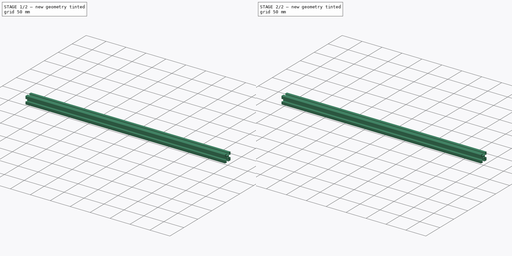
[diagram: build sequence overview — one tinted view per stage of 2, left to right]
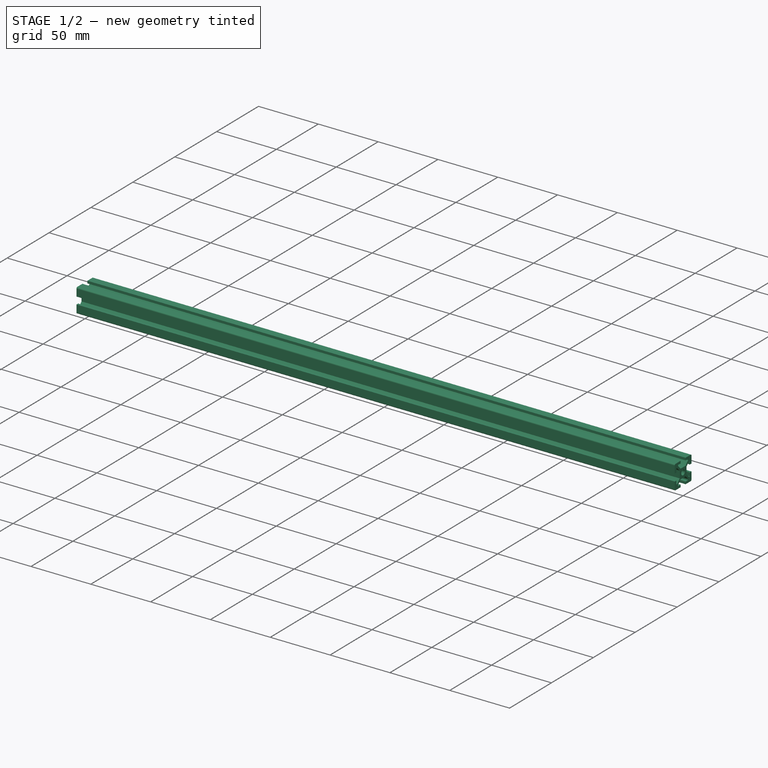
[diagram: stage 1 of 2 — iso view after this stage's code; geometry added in this stage tinted green]
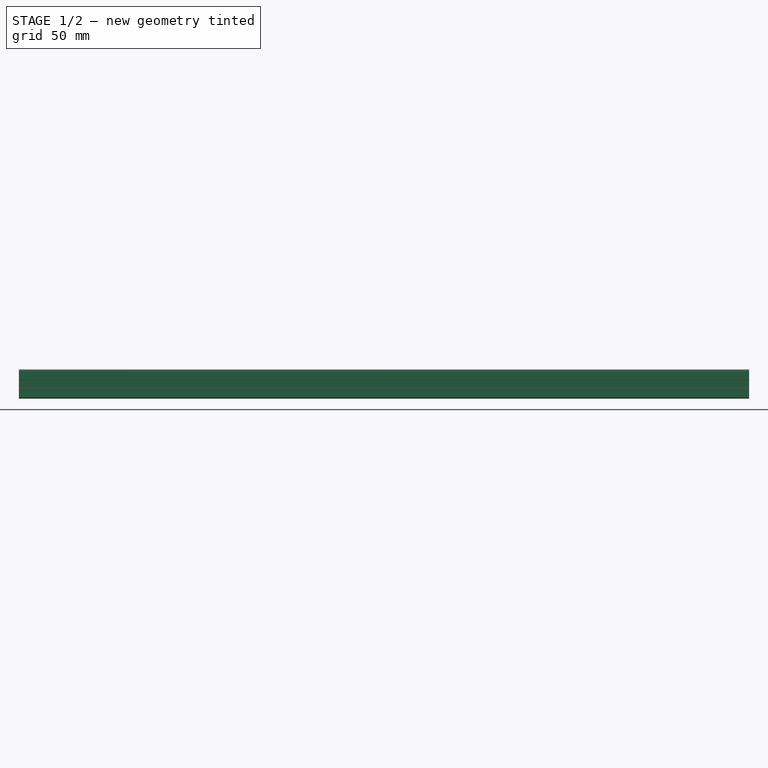
[diagram: stage 1 of 2 — front view after this stage's code; geometry added in this stage tinted green]
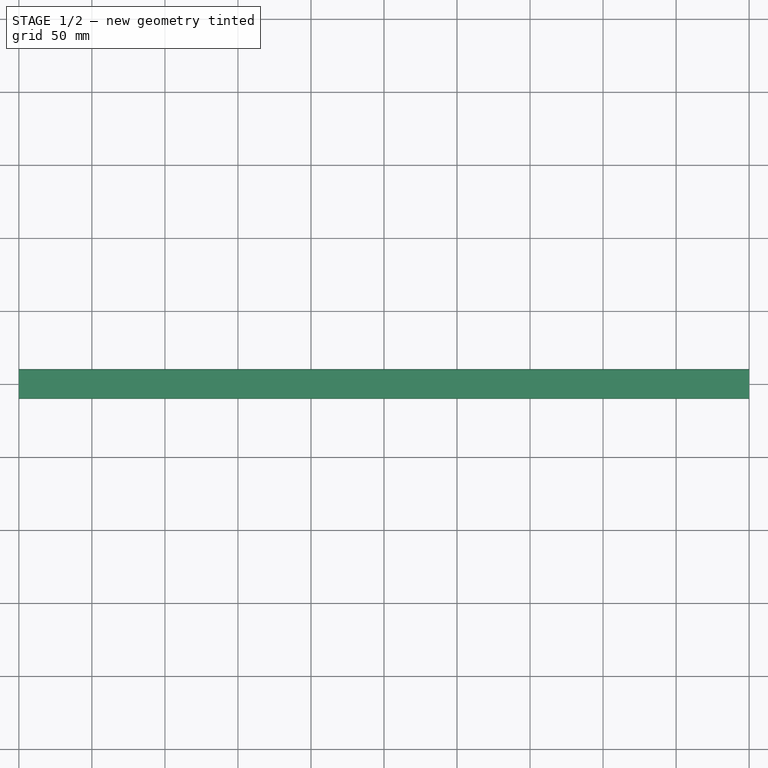
[diagram: stage 1 of 2 — top view after this stage's code; geometry added in this stage tinted green]
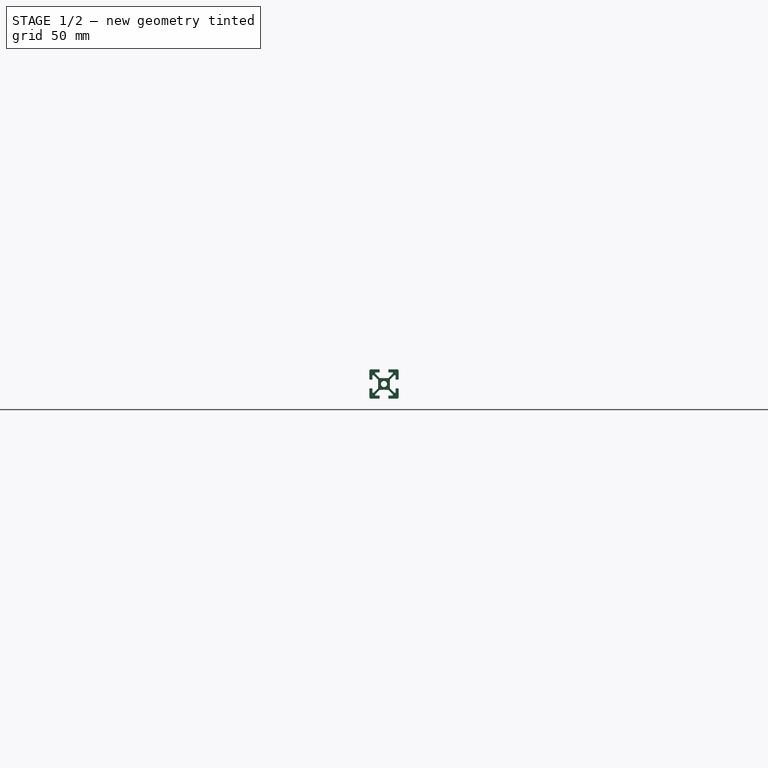
[diagram: stage 1 of 2 — right view after this stage's code; geometry added in this stage tinted green]
FCSTD DOCUMENT
Label: HFS5-2020-500
objects: Sketcher::SketchObject×2, PartDesign::Pad×1, PartDesign::Pocket×1, PartDesign::PolarPattern×1, PartDesign::Fillet×1
note: 8 computed .brp shape members not serialized (recipe doc carries the construction recipe); baked Part::Feature solids carry a one-line shape summary decoded from their .brp

FEATURE [Sketcher::SketchObject] Sketch
  Placement = pos=(0,0,0) rot=(0.57735,0.57735,0.57735;2.0944rad)
  sketch-geometry (51):
    g0: LineSegment StartX=-9 StartY=-10 StartZ=0 EndX=-3 EndY=-10 EndZ=0
    g1: LineSegment StartX=10 StartY=-9 StartZ=0 EndX=10 EndY=-3 EndZ=0
    g2: LineSegment StartX=-2.93934 StartY=-4 StartZ=0 EndX=2.93934 EndY=-4 EndZ=0
    g3: LineSegment StartX=4 StartY=-2.93934 StartZ=0 EndX=4 EndY=2.93934 EndZ=0
    g4: LineSegment StartX=2.93934 StartY=4 StartZ=0 EndX=-2.93934 EndY=4 EndZ=0
    g5: LineSegment StartX=-4 StartY=2.93934 StartZ=0 EndX=-4 EndY=-2.93934 EndZ=0
    g6: LineSegment StartX=-10 StartY=3 StartZ=0 EndX=-8 EndY=3 EndZ=0
    g7: LineSegment StartX=-8 StartY=3 StartZ=0 EndX=-8 EndY=6 EndZ=0
    g8: LineSegment StartX=-8 StartY=6 StartZ=0 EndX=-7.06066 EndY=6 EndZ=0
    g9: LineSegment StartX=-7.06066 StartY=6 StartZ=0 EndX=-4 EndY=2.93934 EndZ=0
    g10: LineSegment StartX=-10 StartY=-3 StartZ=0 EndX=-8 EndY=-3 EndZ=0
    g11: LineSegment StartX=-8 StartY=-3 StartZ=0 EndX=-8 EndY=-6 EndZ=0
    g12: LineSegment StartX=-8 StartY=-6 StartZ=0 EndX=-7.06066 EndY=-6 EndZ=0
    g13: LineSegment StartX=-7.06066 StartY=-6 StartZ=0 EndX=-4 EndY=-2.93934 EndZ=0
    g14: LineSegment StartX=-3 StartY=10 StartZ=0 EndX=-3 EndY=8 EndZ=0
    g15: LineSegment StartX=-3 StartY=8 StartZ=0 EndX=-6 EndY=8 EndZ=0
    g16: LineSegment StartX=-6 StartY=8 StartZ=0 EndX=-6 EndY=7.06066 EndZ=0
    g17: LineSegment StartX=-6 StartY=7.06066 StartZ=0 EndX=-2.93934 EndY=4 EndZ=0
    g18: LineSegment StartX=3 StartY=10 StartZ=0 EndX=3 EndY=8 EndZ=0
    g19: LineSegment StartX=3 StartY=8 StartZ=0 EndX=6 EndY=8 EndZ=0
    g20: LineSegment StartX=6 StartY=8 StartZ=0 EndX=6 EndY=7.06066 EndZ=0
    g21: LineSegment StartX=6 StartY=7.06066 StartZ=0 EndX=2.93934 EndY=4 EndZ=0
    g22: LineSegment StartX=10 StartY=3 StartZ=0 EndX=8 EndY=3 EndZ=0
    g23: LineSegment StartX=8 StartY=3 StartZ=0 EndX=8 EndY=6 EndZ=0
    g24: LineSegment StartX=8 StartY=6 StartZ=0 EndX=7.06066 EndY=6 EndZ=0
    g25: LineSegment StartX=7.06066 StartY=6 StartZ=0 EndX=4 EndY=2.93934 EndZ=0
    g26: LineSegment StartX=-3 StartY=-10 StartZ=0 EndX=-3 EndY=-8 EndZ=0
    g27: LineSegment StartX=-3 StartY=-8 StartZ=0 EndX=-6 EndY=-8 EndZ=0
    g28: LineSegment StartX=-6 StartY=-8 StartZ=0 EndX=-6 EndY=-7.06066 EndZ=0
    g29: LineSegment StartX=-6 StartY=-7.06066 StartZ=0 EndX=-2.93934 EndY=-4 EndZ=0
    g30: LineSegment StartX=10 StartY=-3 StartZ=0 EndX=8 EndY=-3 EndZ=0
    g31: LineSegment StartX=8 StartY=-3 StartZ=0 EndX=8 EndY=-6 EndZ=0
    g32: LineSegment StartX=8 StartY=-6 StartZ=0 EndX=7.06066 EndY=-6 EndZ=0
    g33: LineSegment StartX=7.06066 StartY=-6 StartZ=0 EndX=4 EndY=-2.93934 EndZ=0
    g34: LineSegment StartX=3 StartY=-10 StartZ=0 EndX=3 EndY=-8 EndZ=0
    g35: LineSegment StartX=3 StartY=-8 StartZ=0 EndX=6 EndY=-8 EndZ=0
    g36: LineSegment StartX=6 StartY=-8 StartZ=0 EndX=6 EndY=-7.06066 EndZ=0
    g37: LineSegment StartX=6 StartY=-7.06066 StartZ=0 EndX=2.93934 EndY=-4 EndZ=0
    g38: LineSegment StartX=10 StartY=3 StartZ=0 EndX=10 EndY=9 EndZ=0
    g39: LineSegment StartX=3 StartY=-10 StartZ=0 EndX=9 EndY=-10 EndZ=0
    g40: LineSegment StartX=-3 StartY=10 StartZ=0 EndX=-9 EndY=10 EndZ=0
    g41: LineSegment StartX=-10 StartY=9 StartZ=0 EndX=-10 EndY=3 EndZ=0
    g42: LineSegment StartX=3 StartY=10 StartZ=0 EndX=9 EndY=10 EndZ=0
    g43: LineSegment StartX=-10 StartY=-3 StartZ=0 EndX=-10 EndY=-9 EndZ=0
    g44: LineSegment [constr] StartX=-10 StartY=-3 StartZ=0 EndX=-10 EndY=3 EndZ=0
    g45: LineSegment [constr] StartX=-3 StartY=10 StartZ=0 EndX=3 EndY=10 EndZ=0
    g46: ArcOfCircle CenterX=-9 CenterY=9 CenterZ=0 NormalX=0 NormalY=0 NormalZ=1 Radius=1 StartAngle=1.5708 EndAngle=3.14159
    g47: ArcOfCircle CenterX=9 CenterY=9 CenterZ=0 NormalX=0 NormalY=0 NormalZ=1 Radius=1 StartAngle=0 EndAngle=1.5708
    g48: ArcOfCircle CenterX=9 CenterY=-9 CenterZ=0 NormalX=0 NormalY=0 NormalZ=1 Radius=1 StartAngle=4.71239 EndAngle=6.28319
    g49: ArcOfCircle CenterX=-9 CenterY=-9 CenterZ=0 NormalX=0 NormalY=0 NormalZ=1 Radius=1 StartAngle=3.14159 EndAngle=4.71239
    g50: Circle CenterX=0 CenterY=0 CenterZ=0 NormalX=0 NormalY=0 NormalZ=1 Radius=2.1
  constraints (145):
    c: Horizontal(g0)
    c: Vertical(g1)
    c: Horizontal(g2)
    c: Horizontal(g4)
    c: Vertical(g3)
    c: Vertical(g5)
    c: Horizontal(g6)
    c: Coincident(g6,g7)
    c: Vertical(g7)
    c: Coincident(g7,g8)
    c: Coincident(g8,g9)
    c: Horizontal(g10)
    c: Coincident(g10,g11)
    c: Vertical(g11)
    c: Coincident(g11,g12)
    c: Coincident(g12,g13)
    c: Vertical(g14)
    c: Coincident(g14,g15)
    c: Horizontal(g15)
    c: Coincident(g15,g16)
    c: Coincident(g16,g17)
    c: Vertical(g18)
    c: Coincident(g18,g19)
    c: Horizontal(g19)
    c: Coincident(g19,g20)
    c: Coincident(g20,g21)
    c: Horizontal(g22)
    c: Coincident(g22,g23)
    c: Vertical(g23)
    c: Coincident(g23,g24)
    c: Coincident(g24,g25)
    c: Horizontal(g24)
    c: Vertical(g16)
    c: Horizontal(g8)
    c: Horizontal(g12)
    c: Vertical(g20)
    c: Vertical(g26)
    c: Coincident(g26,g27)
    c: Horizontal(g27)
    c: Coincident(g27,g28)
    c: Vertical(g28)
    c: Coincident(g28,g29)
    c: Horizontal(g30)
    c: Coincident(g30,g31)
    c: Vertical(g31)
    c: Coincident(g31,g32)
    c: Coincident(g32,g33)
    c: Horizontal(g32)
    c: Vertical(g34)
    c: Coincident(g34,g35)
    c: Horizontal(g35)
    c: Coincident(g35,g36)
    c: Vertical(g36)
    c: Coincident(g36,g37)
    c: Equal(g10,g6)
    c: Equal(g6,g14)
    c: Equal(g14,g18)
    c: Equal(g18,g22)
    c: Equal(g22,g30)
    c: Equal(g30,g26)
    c: Equal(g26,g34)
    c: DistanceY(g14) = -2
    c: Equal(g16,g8)
    c: Equal(g8,g12)
    c: Equal(g12,g28)
    c: Equal(g28,g36)
    c: Equal(g36,g32)
    c: Equal(g32,g24)
    c: Equal(g24,g20)
    c: Equal(g7,g15)
    c: Equal(g15,g19)
    c: Equal(g19,g23)
    c: Equal(g23,g31)
    c: Equal(g31,g35)
    c: Equal(g35,g27)
    c: Equal(g27,g11)
    c: Equal(g33,g37)
    c: Equal(g37,g29)
    c: Equal(g29,g13)
    c: Equal(g13,g9)
    c: Equal(g9,g17)
    c: Equal(g17,g25)
    c: Equal(g25,g21)
    c: Parallel(g13,g29)
    c: Parallel(g29,g25)
    c: Parallel(g25,g21)
    c: Coincident(g5,g13)
    c: Coincident(g2,g29)
    c: Coincident(g3,g33)
    c: Coincident(g2,g37)
    c: Coincident(g3,g25)
    c: Coincident(g4,g21)
    c: Coincident(g5,g9)
    c: Coincident(g4,g17)
    c: Equal(g5,g2)
    c: Equal(g2,g3)
    c: Equal(g3,g4)
    c: Coincident(g1,g30)
    c: Coincident(g38,g22)
    c: Tangent(g1,g38)
    c: Coincident(g0,g26)
    c: Coincident(g39,g34)
    c: Tangent(g0,g39)
    c: Coincident(g40,g14)
    c: Horizontal(g40)
    c: Coincident(g41,g6)
    c: Vertical(g41)
    c: Coincident(g42,g18)
    c: Horizontal(g42)
    c: Coincident(g43,g10)
    c: Vertical(g43)
    c: DistanceX(g5,g3) = 8
    c: DistanceY(g2,g4) = 8
    c: DistanceX(g5) = -4
    c: DistanceY(g4) = 4
    c: Coincident(g44,g10)
    c: Coincident(g44,g6)
    c: Coincident(g45,g14)
    c: Coincident(g45,g18)
    c: Horizontal(g45)
    c: Vertical(g44)
    c: DistanceX(g45) = 6
    c: Tangent(g40,g46)
    c: Tangent(g41,g46)
    c: Tangent(g38,g47)
    c: Tangent(g42,g47)
    c: Tangent(g1,g48)
    c: Tangent(g39,g48)
    c: Tangent(g0,g49)
    c: Tangent(g43,g49)
    c: Equal(g49,g46)
    c: Equal(g46,g47)
    c: Equal(g47,g48)
    c: Radius(g47) = 1
    c: Equal(g40,g41)
    c: Equal(g43,g1)
    c: DistanceY(g0,g40) = 20
    c: Equal(g40,g42)
    c: Equal(g45,g44)
    c: DistanceY(g23,g31) = -12
    c: Equal(g0,g39)
    c: Distance(g3,g2) = 1.5
    c: Radius(g50) = 2.1
    c: DistanceX(g50) = 0
    c: DistanceY(g50) = 0
FEATURE [PartDesign::Pad] Pad
  Length = 500
  Length2 = 100
  Placement = pos=(0,0,0) rot=(0.57735,0.57735,0.57735;2.0944rad)
  Sketch = -> Sketch
  Type = 0
FEATURE [Sketcher::SketchObject] Sketch001
  ExternalGeometry = -> [Pad]
  Placement = pos=(0,0,0) rot=(0.57735,0.57735,-0.57735;4.18879rad)
  Support = -> Pad [Face50]
  sketch-geometry (3):
    g0: LineSegment StartX=-0.52 StartY=4 StartZ=0 EndX=0 EndY=3.7 EndZ=0
    g1: LineSegment StartX=0 StartY=3.7 StartZ=0 EndX=0.52 EndY=4 EndZ=0
    g2: LineSegment StartX=0.52 StartY=4 StartZ=0 EndX=-0.52 EndY=4 EndZ=0
  constraints (9):
    c: Coincident(g0,g1)
    c: Coincident(g1,g2)
    c: Horizontal(g2)
    c: Coincident(g2,g0)
    c: Equal(g0,g1)
    c: DistanceX(g2) = -1.04
    c: DistanceY(g1) = 0.3
    c: PointOnObject(g0,g-2)
    c: PointOnObject(g-3,g2)
FEATURE [PartDesign::Pocket] Pocket
  Length = 5
  Placement = pos=(0,0,0) rot=(0.57735,0.57735,0.57735;2.0944rad)
  Sketch = -> Sketch001
  Type = 1
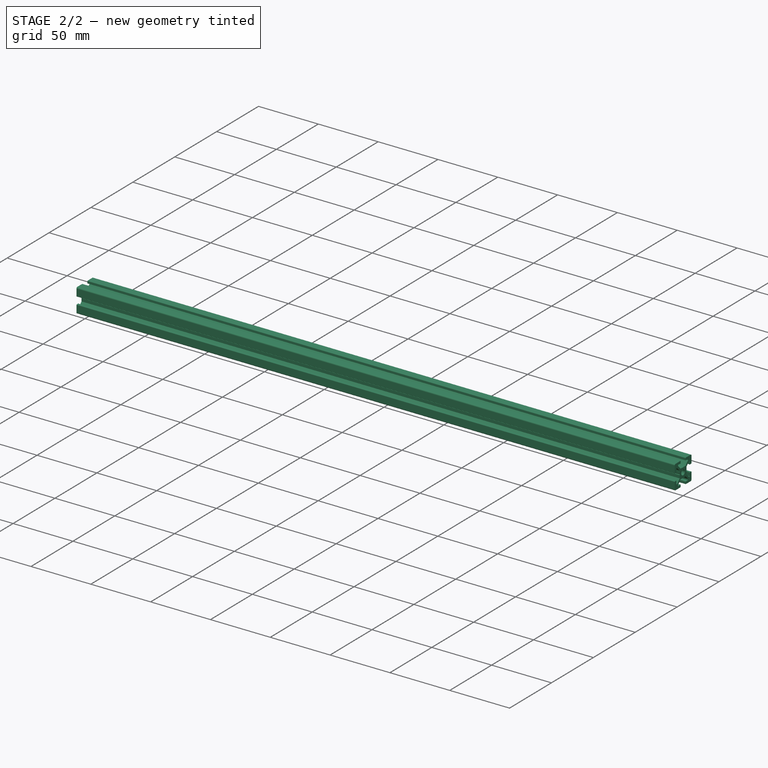
[diagram: stage 2 of 2 — iso view after this stage's code; geometry added in this stage tinted green]
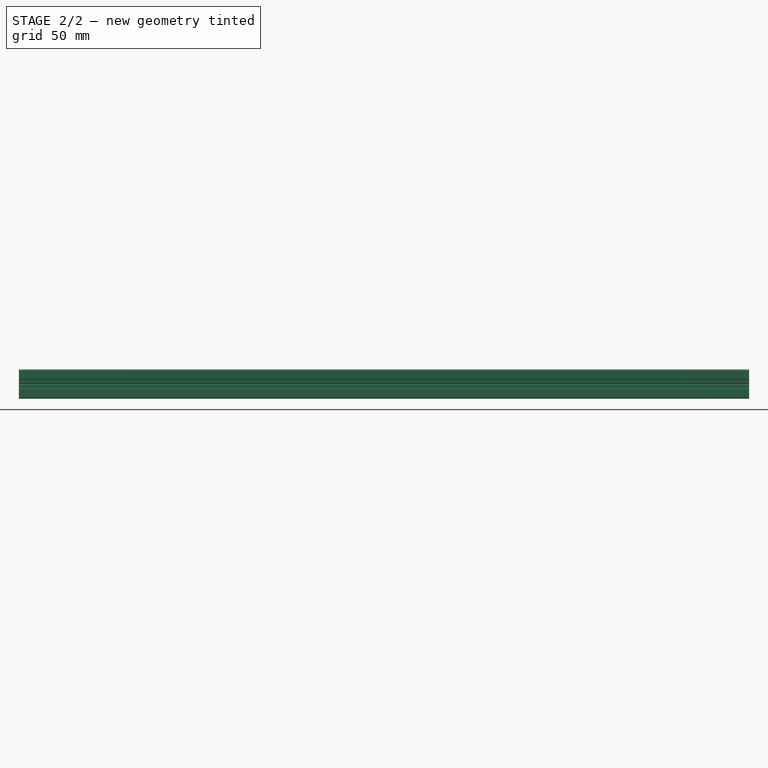
[diagram: stage 2 of 2 — front view after this stage's code; geometry added in this stage tinted green]
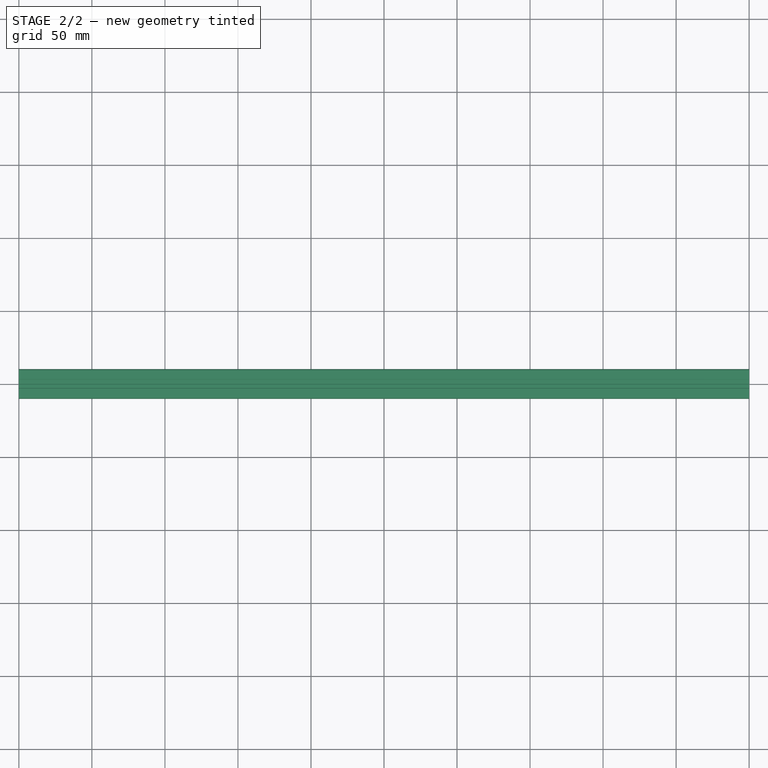
[diagram: stage 2 of 2 — top view after this stage's code; geometry added in this stage tinted green]
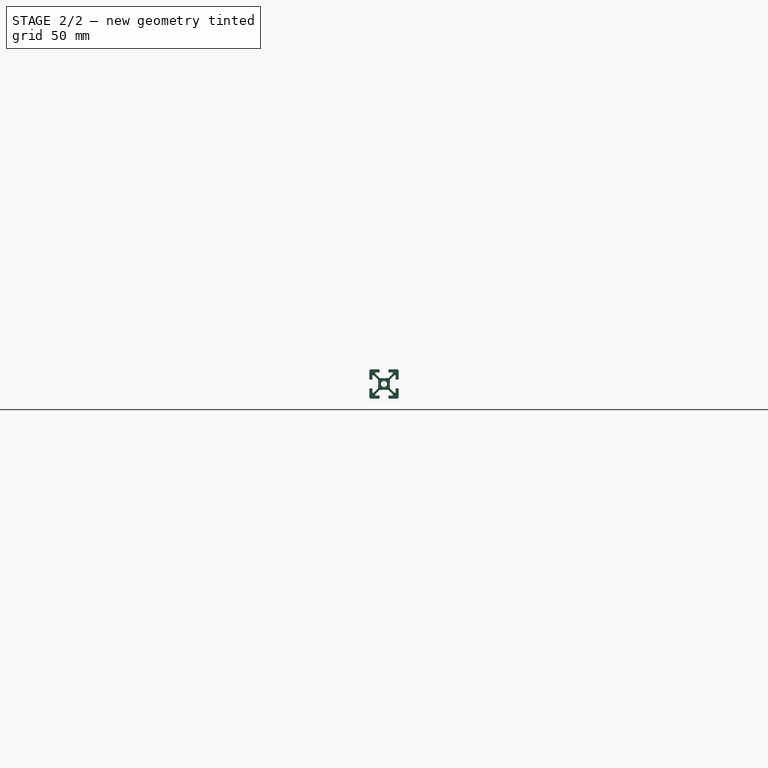
[diagram: stage 2 of 2 — right view after this stage's code; geometry added in this stage tinted green]
FEATURE [PartDesign::PolarPattern] PolarPattern
  Angle = 360
  Occurrences = 4
  Originals = -> [Pocket]
  Placement = pos=(0,0,0) rot=(0.57735,0.57735,0.57735;2.0944rad)
  StdAxis = Z
FEATURE [PartDesign::Fillet] Fillet
  Base = -> PolarPattern [Edge147,Edge159,Edge174,Edge132,Edge177,Edge144,Edge129,Edge162]
  Placement = pos=(0,0,0) rot=(0.57735,0.57735,0.57735;2.0944rad)
  Radius = 0.3
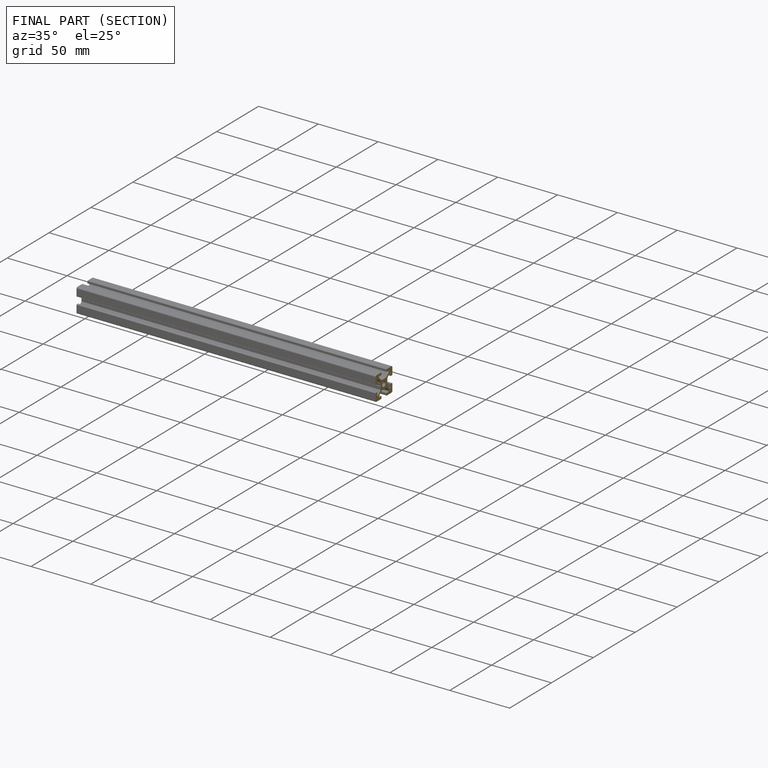
[diagram: finished part — half-section view (interior)]
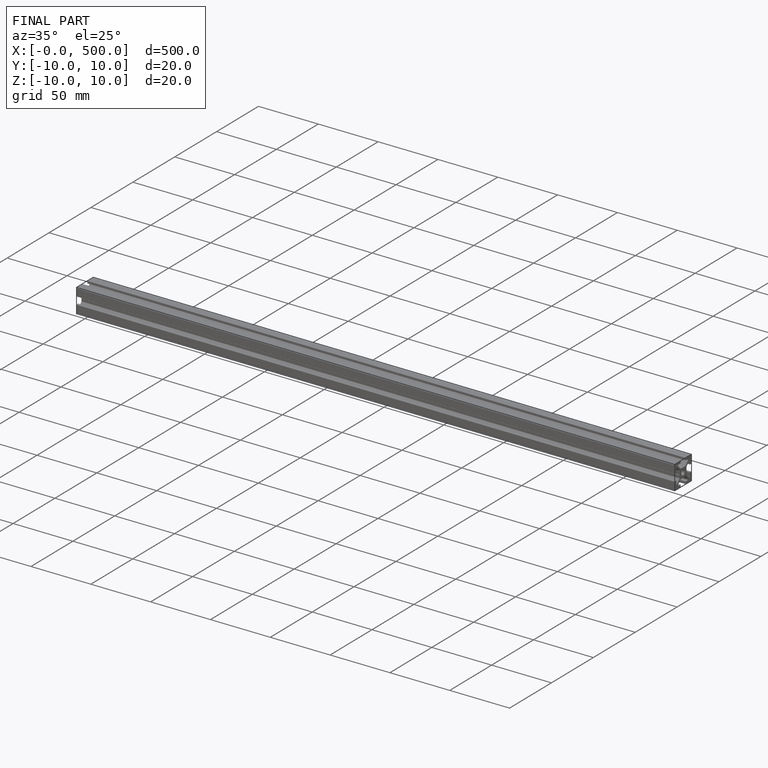
[diagram: finished part — iso view with bounding-box wireframe]
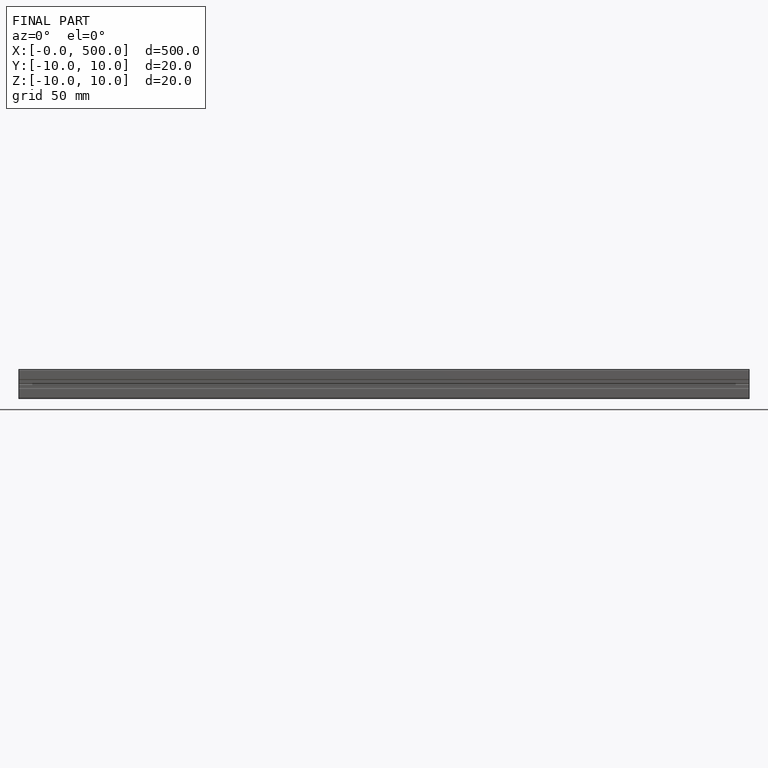
[diagram: finished part — front view with bounding-box wireframe]
